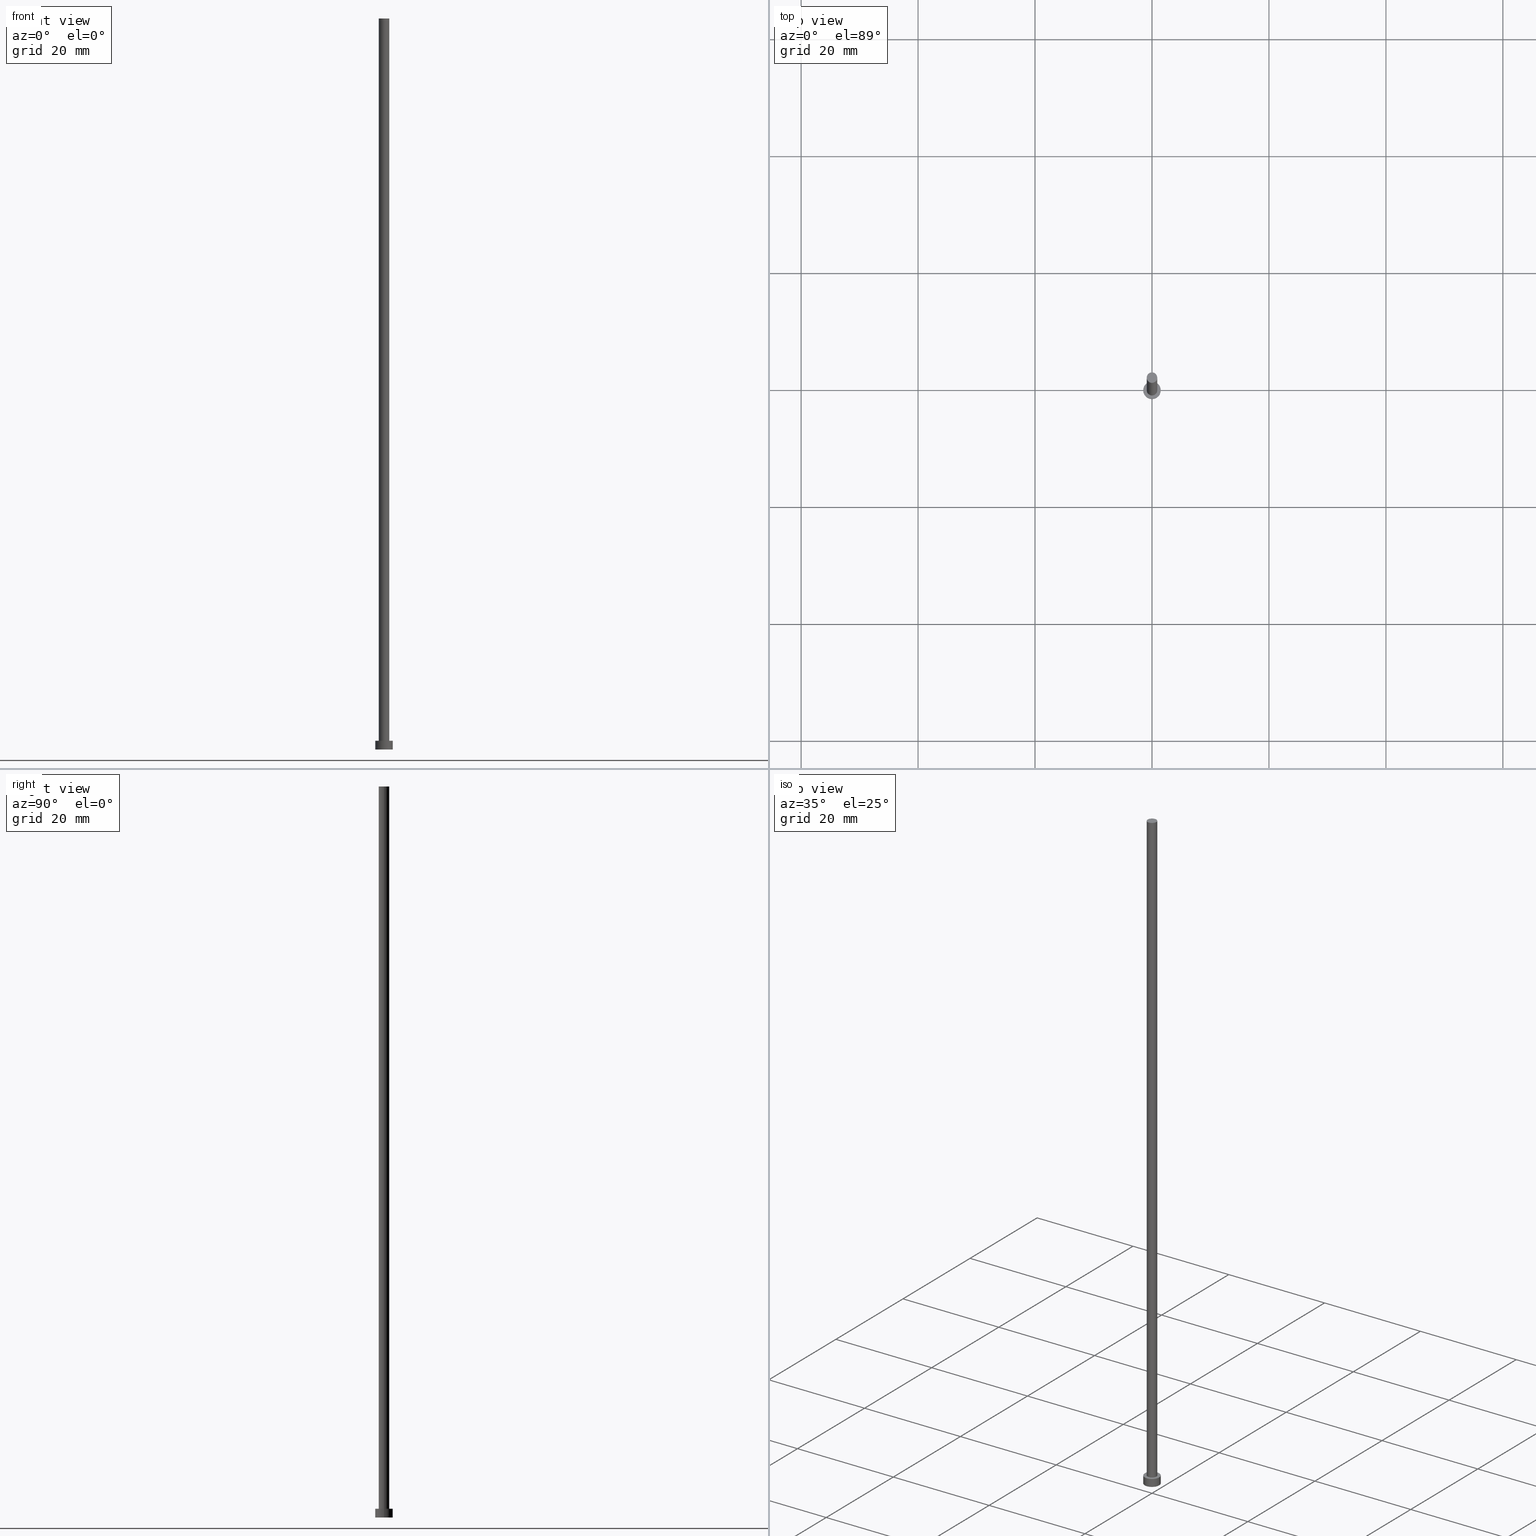
[diagram: canonical four-view strip — front | top / right | iso, engineering-drawing reading convention]
A machine part, canonical four-view strip (front | top / right | iso — engineering-drawing reading convention). The complete STEP part file that produces these views, byte-faithful:
ISO-10303-21;
HEADER;
FILE_DESCRIPTION (( 'STEP AP203' ),
    '1' );
FILE_NAME ('ebbf.STEP',
    '2023-02-13T14:57:19',
    ( '' ),
    ( '' ),
    'SwSTEP 2.0',
    'SolidWorks 2019',
    '' );
FILE_SCHEMA (( 'CONFIG_CONTROL_DESIGN' ));
ENDSEC;

DATA;
#1 = DATE_TIME_ROLE ( 'creation_date' ) ;
#2 = CIRCLE ( 'NONE', #216, 1.500000000000000222 ) ;
#3 = LINE ( 'NONE', #68, #144 ) ;
#4 = FACE_OUTER_BOUND ( 'NONE', #34, .T. ) ;
#5 = SECURITY_CLASSIFICATION ( '', '', #85 ) ;
#6 = AXIS2_PLACEMENT_3D ( 'NONE', #52, #128, #146 ) ;
#7 = CC_DESIGN_APPROVAL ( #89, ( #251 ) ) ;
#8 = DIRECTION ( 'NONE',  ( 0.000000000000000000, 0.000000000000000000, 1.000000000000000000 ) ) ;
#9 = LINE ( 'NONE', #176, #108 ) ;
#10 = ORIENTED_EDGE ( 'NONE', *, *, #233, .T. ) ;
#11 = APPROVAL ( #235, 'NEUR�EN�' ) ;
#12 = ORIENTED_EDGE ( 'NONE', *, *, #188, .T. ) ;
#13 = AXIS2_PLACEMENT_3D ( 'NONE', #150, #179, #139 ) ;
#14 = ORIENTED_EDGE ( 'NONE', *, *, #188, .F. ) ;
#15 = DIRECTION ( 'NONE',  ( 0.000000000000000000, 0.000000000000000000, 1.000000000000000000 ) ) ;
#16 = VERTEX_POINT ( 'NONE', #236 ) ;
#17 = FACE_OUTER_BOUND ( 'NONE', #234, .T. ) ;
#18 = ORIENTED_EDGE ( 'NONE', *, *, #147, .T. ) ;
#19 = PERSON_AND_ORGANIZATION ( #31, #114 ) ;
#20 = CC_DESIGN_SECURITY_CLASSIFICATION ( #5, ( #27 ) ) ;
#21 = VERTEX_POINT ( 'NONE', #88 ) ;
#22 = CALENDAR_DATE ( 2023, 13, 2 ) ;
#23 = PLANE ( 'NONE',  #50 ) ;
#24 = CALENDAR_DATE ( 2023, 13, 2 ) ;
#25 = CLOSED_SHELL ( 'NONE', ( #170, #199, #211, #54, #151, #140, #239 ) ) ;
#26 = EDGE_LOOP ( 'NONE', ( #213, #157, #253, #14 ) ) ;
#27 = PRODUCT_DEFINITION_FORMATION_WITH_SPECIFIED_SOURCE ( 'LIBOVOLN�', '', #72, .NOT_KNOWN. ) ;
#28 = APPROVAL_DATE_TIME ( #203, #205 ) ;
#29 = CC_DESIGN_DATE_AND_TIME_ASSIGNMENT ( #105, #1, ( #251 ) ) ;
#30 = DIRECTION ( 'NONE',  ( 1.000000000000000000, 0.000000000000000000, 0.000000000000000000 ) ) ;
#31 = PERSON ( 'NEUR�EN�', 'NEUR�EN�', 'NEUR�EN�', ('NEUR�EN�'), ('NEUR�EN�'), ('NEUR�EN�') ) ;
#32 = EDGE_CURVE ( 'NONE', #123, #232, #66, .T. ) ;
#33 = CYLINDRICAL_SURFACE ( 'NONE', #198, 1.500000000000000222 ) ;
#34 = EDGE_LOOP ( 'NONE', ( #96, #186, #12, #101 ) ) ;
#35 = DIRECTION ( 'NONE',  ( 1.000000000000000000, 0.000000000000000000, 0.000000000000000000 ) ) ;
#36 = PRODUCT_RELATED_PRODUCT_CATEGORY ( 'detail', '', ( #72 ) ) ;
#37 = ORIENTED_EDGE ( 'NONE', *, *, #207, .F. ) ;
#38 = COORDINATED_UNIVERSAL_TIME_OFFSET ( 1, 0, .AHEAD. ) ;
#39 = AXIS2_PLACEMENT_3D ( 'NONE', #91, #8, #167 ) ;
#40 = COORDINATED_UNIVERSAL_TIME_OFFSET ( 1, 0, .AHEAD. ) ;
#41 = AXIS2_PLACEMENT_3D ( 'NONE', #196, #116, #195 ) ;
#42 = CC_DESIGN_DATE_AND_TIME_ASSIGNMENT ( #255, #127, ( #5 ) ) ;
#43 = DATE_AND_TIME ( #126, #51 ) ;
#44 = PERSON_AND_ORGANIZATION ( #31, #114 ) ;
#45 = EDGE_CURVE ( 'NONE', #16, #123, #3, .T. ) ;
#46 = CARTESIAN_POINT ( 'NONE',  ( -0.9000000000000000222, 0.000000000000000000, 125.0000000000000000 ) ) ;
#47 = DIRECTION ( 'NONE',  ( 0.000000000000000000, 0.000000000000000000, 1.000000000000000000 ) ) ;
#48 = CARTESIAN_POINT ( 'NONE',  ( 1.500000000000000222, 1.836970198721030181E-16, 1.500000000000000000 ) ) ;
#49 = DIRECTION ( 'NONE',  ( -0.000000000000000000, -0.000000000000000000, -1.000000000000000000 ) ) ;
#50 = AXIS2_PLACEMENT_3D ( 'NONE', #238, #241, #110 ) ;
#51 = LOCAL_TIME ( 15, 57, 19.00000000000000000, #40 ) ;
#52 = CARTESIAN_POINT ( 'NONE',  ( 0.000000000000000000, 0.000000000000000000, 125.0000000000000000 ) ) ;
#53 = PERSON_AND_ORGANIZATION ( #31, #114 ) ;
#54 = ADVANCED_FACE ( 'NONE', ( #189, #160 ), #23, .T. ) ;
#55 = AXIS2_PLACEMENT_3D ( 'NONE', #64, #142, #242 ) ;
#56 = LOCAL_TIME ( 15, 57, 19.00000000000000000, #102 ) ;
#57 = FACE_OUTER_BOUND ( 'NONE', #155, .T. ) ;
#58 = ORIENTED_EDGE ( 'NONE', *, *, #112, .F. ) ;
#59 = CARTESIAN_POINT ( 'NONE',  ( 0.000000000000000000, 0.000000000000000000, 0.000000000000000000 ) ) ;
#60 = CC_DESIGN_APPROVAL ( #205, ( #5 ) ) ;
#61 = VERTEX_POINT ( 'NONE', #46 ) ;
#62 = ORIENTED_EDGE ( 'NONE', *, *, #32, .F. ) ;
#63 = APPROVAL_STATUS ( 'not_yet_approved' ) ;
#64 = CARTESIAN_POINT ( 'NONE',  ( 0.000000000000000000, 0.000000000000000000, 1.500000000000000000 ) ) ;
#65 = CC_DESIGN_PERSON_AND_ORGANIZATION_ASSIGNMENT ( #141, #184, ( #251 ) ) ;
#66 = CIRCLE ( 'NONE', #162, 0.9000000000000000222 ) ;
#67 = LOCAL_TIME ( 15, 57, 19.00000000000000000, #158 ) ;
#68 = CARTESIAN_POINT ( 'NONE',  ( 0.9000000000000000222, 1.102182119232617788E-16, 125.0000000000000000 ) ) ;
#69 = UNCERTAINTY_MEASURE_WITH_UNIT (LENGTH_MEASURE( 1.000000000000000082E-05 ), #95, 'distance_accuracy_value', 'NONE');
#70 = CARTESIAN_POINT ( 'NONE',  ( -1.500000000000000222, 0.000000000000000000, 1.500000000000000000 ) ) ;
#71 = DIRECTION ( 'NONE',  ( 1.000000000000000000, 0.000000000000000000, 0.000000000000000000 ) ) ;
#72 = PRODUCT ( 'ebbf', 'ebbf', '', ( #175 ) ) ;
#73 = CARTESIAN_POINT ( 'NONE',  ( 0.000000000000000000, 0.000000000000000000, 125.0000000000000000 ) ) ;
#74 = CARTESIAN_POINT ( 'NONE',  ( 0.9000000000000000222, 1.102182119232617788E-16, 1.500000000000000000 ) ) ;
#75 = MANIFOLD_SOLID_BREP ( 'P�idat vysunut�m3', #25 ) ;
#76 = EDGE_CURVE ( 'NONE', #232, #123, #220, .T. ) ;
#77 = CARTESIAN_POINT ( 'NONE',  ( 1.500000000000000222, 1.836970198721030181E-16, 1.500000000000000000 ) ) ;
#78 =( NAMED_UNIT ( * ) SI_UNIT ( $, .STERADIAN. ) SOLID_ANGLE_UNIT ( ) );
#79 = EDGE_LOOP ( 'NONE', ( #254, #62 ) ) ;
#80 = DIRECTION ( 'NONE',  ( 0.000000000000000000, 0.000000000000000000, 1.000000000000000000 ) ) ;
#81 = VERTEX_POINT ( 'NONE', #70 ) ;
#82 = LOCAL_TIME ( 15, 57, 19.00000000000000000, #202 ) ;
#83 = PERSON_AND_ORGANIZATION ( #31, #114 ) ;
#84 = CIRCLE ( 'NONE', #224, 1.500000000000000222 ) ;
#85 = SECURITY_CLASSIFICATION_LEVEL ( 'unclassified' ) ;
#86 = DIRECTION ( 'NONE',  ( -0.000000000000000000, -0.000000000000000000, -1.000000000000000000 ) ) ;
#87 = APPROVAL_ROLE ( '' ) ;
#88 = CARTESIAN_POINT ( 'NONE',  ( 1.500000000000000222, 1.836970198721030181E-16, 0.000000000000000000 ) ) ;
#89 = APPROVAL ( #109, 'NEUR�EN�' ) ;
#90 = CIRCLE ( 'NONE', #249, 0.9000000000000000222 ) ;
#91 = CARTESIAN_POINT ( 'NONE',  ( 0.000000000000000000, 0.000000000000000000, 0.000000000000000000 ) ) ;
#92 = CC_DESIGN_PERSON_AND_ORGANIZATION_ASSIGNMENT ( #83, #164, ( #5 ) ) ;
#93 = APPROVAL_PERSON_ORGANIZATION ( #53, #89, #87 ) ;
#94 = FACE_OUTER_BOUND ( 'NONE', #98, .T. ) ;
#95 =( LENGTH_UNIT ( ) NAMED_UNIT ( * ) SI_UNIT ( .MILLI., .METRE. ) );
#96 = ORIENTED_EDGE ( 'NONE', *, *, #45, .F. ) ;
#97 = DIRECTION ( 'NONE',  ( 0.000000000000000000, 0.000000000000000000, 1.000000000000000000 ) ) ;
#98 = EDGE_LOOP ( 'NONE', ( #37, #58 ) ) ;
#99 = ORIENTED_EDGE ( 'NONE', *, *, #233, .F. ) ;
#100 = CARTESIAN_POINT ( 'NONE',  ( 0.000000000000000000, 0.000000000000000000, 1.500000000000000000 ) ) ;
#101 = ORIENTED_EDGE ( 'NONE', *, *, #76, .T. ) ;
#102 = COORDINATED_UNIVERSAL_TIME_OFFSET ( 1, 0, .AHEAD. ) ;
#103 = CARTESIAN_POINT ( 'NONE',  ( 0.000000000000000000, 0.000000000000000000, 1.500000000000000000 ) ) ;
#104 = APPLICATION_CONTEXT ( 'configuration controlled 3d designs of mechanical parts and assemblies' ) ;
#105 = DATE_AND_TIME ( #22, #67 ) ;
#106 = EDGE_LOOP ( 'NONE', ( #18, #10 ) ) ;
#107 = CIRCLE ( 'NONE', #41, 1.500000000000000222 ) ;
#108 = VECTOR ( 'NONE', #117, 1000.000000000000000 ) ;
#109 = APPROVAL_STATUS ( 'not_yet_approved' ) ;
#110 = DIRECTION ( 'NONE',  ( 1.000000000000000000, 0.000000000000000000, -0.000000000000000000 ) ) ;
#111 = DESIGN_CONTEXT ( 'detailed design', #246, 'design' ) ;
#112 = EDGE_CURVE ( 'NONE', #21, #137, #84, .T. ) ;
#113 = CYLINDRICAL_SURFACE ( 'NONE', #215, 0.9000000000000000222 ) ;
#114 = ORGANIZATION ( 'NEUR�EN�', 'NEUR�EN�', '' ) ;
#115 = PLANE ( 'NONE',  #39 ) ;
#116 = DIRECTION ( 'NONE',  ( 0.000000000000000000, 0.000000000000000000, 1.000000000000000000 ) ) ;
#117 = DIRECTION ( 'NONE',  ( -0.000000000000000000, -0.000000000000000000, -1.000000000000000000 ) ) ;
#118 = EDGE_CURVE ( 'NONE', #193, #21, #221, .T. ) ;
#119 =( NAMED_UNIT ( * ) PLANE_ANGLE_UNIT ( ) SI_UNIT ( $, .RADIAN. ) );
#120 = ORIENTED_EDGE ( 'NONE', *, *, #147, .F. ) ;
#121 = CARTESIAN_POINT ( 'NONE',  ( -0.9000000000000000222, 0.000000000000000000, 1.500000000000000000 ) ) ;
#122 = DIRECTION ( 'NONE',  ( -0.000000000000000000, -0.000000000000000000, -1.000000000000000000 ) ) ;
#123 = VERTEX_POINT ( 'NONE', #74 ) ;
#124 = DATE_AND_TIME ( #217, #133 ) ;
#125 = PERSON_AND_ORGANIZATION ( #31, #114 ) ;
#126 = CALENDAR_DATE ( 2023, 13, 2 ) ;
#127 = DATE_TIME_ROLE ( 'classification_date' ) ;
#128 = DIRECTION ( 'NONE',  ( -0.000000000000000000, -0.000000000000000000, -1.000000000000000000 ) ) ;
#129 = EDGE_CURVE ( 'NONE', #16, #61, #90, .T. ) ;
#130 = AXIS2_PLACEMENT_3D ( 'NONE', #100, #230, #229 ) ;
#131 = CC_DESIGN_PERSON_AND_ORGANIZATION_ASSIGNMENT ( #136, #149, ( #72 ) ) ;
#132 = CARTESIAN_POINT ( 'NONE',  ( 0.000000000000000000, 0.000000000000000000, 1.500000000000000000 ) ) ;
#133 = LOCAL_TIME ( 15, 57, 19.00000000000000000, #38 ) ;
#134 = APPLICATION_PROTOCOL_DEFINITION ( 'international standard', 'config_control_design', 1994, #104 ) ;
#135 = DIRECTION ( 'NONE',  ( 1.000000000000000000, 0.000000000000000000, 0.000000000000000000 ) ) ;
#136 = PERSON_AND_ORGANIZATION ( #31, #114 ) ;
#137 = VERTEX_POINT ( 'NONE', #148 ) ;
#138 = CIRCLE ( 'NONE', #163, 0.9000000000000000222 ) ;
#139 = DIRECTION ( 'NONE',  ( 1.000000000000000000, 0.000000000000000000, -0.000000000000000000 ) ) ;
#140 = ADVANCED_FACE ( 'NONE', ( #4 ), #226, .T. ) ;
#141 = PERSON_AND_ORGANIZATION ( #31, #114 ) ;
#142 = DIRECTION ( 'NONE',  ( 0.000000000000000000, 0.000000000000000000, 1.000000000000000000 ) ) ;
#143 = PERSON_AND_ORGANIZATION_ROLE ( 'design_supplier' ) ;
#144 = VECTOR ( 'NONE', #86, 1000.000000000000000 ) ;
#145 = CARTESIAN_POINT ( 'NONE',  ( 0.000000000000000000, 0.000000000000000000, 0.000000000000000000 ) ) ;
#146 = DIRECTION ( 'NONE',  ( -1.000000000000000000, 0.000000000000000000, 0.000000000000000000 ) ) ;
#147 = EDGE_CURVE ( 'NONE', #81, #193, #156, .T. ) ;
#148 = CARTESIAN_POINT ( 'NONE',  ( -1.500000000000000222, 0.000000000000000000, 0.000000000000000000 ) ) ;
#149 = PERSON_AND_ORGANIZATION_ROLE ( 'design_owner' ) ;
#150 = CARTESIAN_POINT ( 'NONE',  ( 0.000000000000000000, 0.000000000000000000, 125.0000000000000000 ) ) ;
#151 = ADVANCED_FACE ( 'NONE', ( #94 ), #115, .F. ) ;
#152 = FACE_OUTER_BOUND ( 'NONE', #194, .T. ) ;
#153 = ORIENTED_EDGE ( 'NONE', *, *, #207, .T. ) ;
#154 = CARTESIAN_POINT ( 'NONE',  ( 0.000000000000000000, 0.000000000000000000, 0.000000000000000000 ) ) ;
#155 = EDGE_LOOP ( 'NONE', ( #214, #120, #177, #153 ) ) ;
#156 = CIRCLE ( 'NONE', #228, 1.500000000000000222 ) ;
#157 = ORIENTED_EDGE ( 'NONE', *, *, #45, .T. ) ;
#158 = COORDINATED_UNIVERSAL_TIME_OFFSET ( 1, 0, .AHEAD. ) ;
#159 = CALENDAR_DATE ( 2023, 13, 2 ) ;
#160 = FACE_OUTER_BOUND ( 'NONE', #106, .T. ) ;
#161 = CC_DESIGN_APPROVAL ( #11, ( #27 ) ) ;
#162 = AXIS2_PLACEMENT_3D ( 'NONE', #103, #182, #165 ) ;
#163 = AXIS2_PLACEMENT_3D ( 'NONE', #172, #80, #35 ) ;
#164 = PERSON_AND_ORGANIZATION_ROLE ( 'classification_officer' ) ;
#165 = DIRECTION ( 'NONE',  ( 1.000000000000000000, 0.000000000000000000, 0.000000000000000000 ) ) ;
#166 = APPROVAL_DATE_TIME ( #124, #11 ) ;
#167 = DIRECTION ( 'NONE',  ( 1.000000000000000000, 0.000000000000000000, -0.000000000000000000 ) ) ;
#168 = PRODUCT_DEFINITION_SHAPE ( 'NONE', 'NONE',  #251 ) ;
#169 = APPROVAL_PERSON_ORGANIZATION ( #125, #205, #237 ) ;
#170 = ADVANCED_FACE ( 'NONE', ( #243 ), #113, .T. ) ;
#171 = CYLINDRICAL_SURFACE ( 'NONE', #130, 1.500000000000000222 ) ;
#172 = CARTESIAN_POINT ( 'NONE',  ( 0.000000000000000000, 0.000000000000000000, 125.0000000000000000 ) ) ;
#173 =( GEOMETRIC_REPRESENTATION_CONTEXT ( 3 ) GLOBAL_UNCERTAINTY_ASSIGNED_CONTEXT ( ( #69 ) ) GLOBAL_UNIT_ASSIGNED_CONTEXT ( ( #95, #119, #78 ) ) REPRESENTATION_CONTEXT ( 'NONE', 'WORKASPACE' ) );
#174 = ORIENTED_EDGE ( 'NONE', *, *, #178, .F. ) ;
#175 = MECHANICAL_CONTEXT ( 'NONE', #104, 'mechanical' ) ;
#176 = CARTESIAN_POINT ( 'NONE',  ( -1.500000000000000222, 0.000000000000000000, 1.500000000000000000 ) ) ;
#177 = ORIENTED_EDGE ( 'NONE', *, *, #178, .T. ) ;
#178 = EDGE_CURVE ( 'NONE', #81, #137, #9, .T. ) ;
#179 = DIRECTION ( 'NONE',  ( 0.000000000000000000, 0.000000000000000000, 1.000000000000000000 ) ) ;
#180 = ORIENTED_EDGE ( 'NONE', *, *, #129, .T. ) ;
#181 = APPROVAL_ROLE ( '' ) ;
#182 = DIRECTION ( 'NONE',  ( 0.000000000000000000, 0.000000000000000000, 1.000000000000000000 ) ) ;
#183 = CC_DESIGN_PERSON_AND_ORGANIZATION_ASSIGNMENT ( #19, #143, ( #27 ) ) ;
#184 = PERSON_AND_ORGANIZATION_ROLE ( 'creator' ) ;
#185 = SHAPE_DEFINITION_REPRESENTATION ( #168, #247 ) ;
#186 = ORIENTED_EDGE ( 'NONE', *, *, #218, .F. ) ;
#187 = VECTOR ( 'NONE', #204, 1000.000000000000000 ) ;
#188 = EDGE_CURVE ( 'NONE', #61, #232, #209, .T. ) ;
#189 = FACE_BOUND ( 'NONE', #79, .T. ) ;
#190 = VECTOR ( 'NONE', #122, 1000.000000000000000 ) ;
#191 = APPROVAL_PERSON_ORGANIZATION ( #44, #11, #181 ) ;
#192 = DIRECTION ( 'NONE',  ( -1.000000000000000000, 0.000000000000000000, 0.000000000000000000 ) ) ;
#193 = VERTEX_POINT ( 'NONE', #77 ) ;
#194 = EDGE_LOOP ( 'NONE', ( #99, #201, #231, #174 ) ) ;
#195 = DIRECTION ( 'NONE',  ( 1.000000000000000000, 0.000000000000000000, 0.000000000000000000 ) ) ;
#196 = CARTESIAN_POINT ( 'NONE',  ( 0.000000000000000000, 0.000000000000000000, 1.500000000000000000 ) ) ;
#197 = ORIENTED_EDGE ( 'NONE', *, *, #218, .T. ) ;
#198 = AXIS2_PLACEMENT_3D ( 'NONE', #252, #248, #212 ) ;
#199 = ADVANCED_FACE ( 'NONE', ( #152 ), #171, .T. ) ;
#200 = APPROVAL_DATE_TIME ( #43, #89 ) ;
#201 = ORIENTED_EDGE ( 'NONE', *, *, #118, .T. ) ;
#202 = COORDINATED_UNIVERSAL_TIME_OFFSET ( 1, 0, .AHEAD. ) ;
#203 = DATE_AND_TIME ( #24, #82 ) ;
#204 = DIRECTION ( 'NONE',  ( -0.000000000000000000, -0.000000000000000000, -1.000000000000000000 ) ) ;
#205 = APPROVAL ( #63, 'NEUR�EN�' ) ;
#206 = CARTESIAN_POINT ( 'NONE',  ( 0.000000000000000000, 0.000000000000000000, 125.0000000000000000 ) ) ;
#207 = EDGE_CURVE ( 'NONE', #137, #21, #2, .T. ) ;
#208 = CARTESIAN_POINT ( 'NONE',  ( -0.9000000000000000222, 0.000000000000000000, 125.0000000000000000 ) ) ;
#209 = LINE ( 'NONE', #208, #190 ) ;
#210 = DIRECTION ( 'NONE',  ( 1.000000000000000000, 0.000000000000000000, 0.000000000000000000 ) ) ;
#211 = ADVANCED_FACE ( 'NONE', ( #57 ), #33, .T. ) ;
#212 = DIRECTION ( 'NONE',  ( -1.000000000000000000, 0.000000000000000000, 0.000000000000000000 ) ) ;
#213 = ORIENTED_EDGE ( 'NONE', *, *, #129, .F. ) ;
#214 = ORIENTED_EDGE ( 'NONE', *, *, #118, .F. ) ;
#215 = AXIS2_PLACEMENT_3D ( 'NONE', #73, #49, #192 ) ;
#216 = AXIS2_PLACEMENT_3D ( 'NONE', #154, #15, #210 ) ;
#217 = CALENDAR_DATE ( 2023, 13, 2 ) ;
#218 = EDGE_CURVE ( 'NONE', #61, #16, #138, .T. ) ;
#219 = PERSON_AND_ORGANIZATION ( #31, #114 ) ;
#220 = CIRCLE ( 'NONE', #55, 0.9000000000000000222 ) ;
#221 = LINE ( 'NONE', #48, #187 ) ;
#222 = CC_DESIGN_PERSON_AND_ORGANIZATION_ASSIGNMENT ( #219, #240, ( #27 ) ) ;
#223 = DIRECTION ( 'NONE',  ( 0.000000000000000000, 0.000000000000000000, 1.000000000000000000 ) ) ;
#224 = AXIS2_PLACEMENT_3D ( 'NONE', #145, #225, #245 ) ;
#225 = DIRECTION ( 'NONE',  ( 0.000000000000000000, 0.000000000000000000, 1.000000000000000000 ) ) ;
#226 = CYLINDRICAL_SURFACE ( 'NONE', #6, 0.9000000000000000222 ) ;
#227 = APPLICATION_PROTOCOL_DEFINITION ( 'international standard', 'config_control_design', 1994, #246 ) ;
#228 = AXIS2_PLACEMENT_3D ( 'NONE', #132, #223, #71 ) ;
#229 = DIRECTION ( 'NONE',  ( -1.000000000000000000, 0.000000000000000000, 0.000000000000000000 ) ) ;
#230 = DIRECTION ( 'NONE',  ( -0.000000000000000000, -0.000000000000000000, -1.000000000000000000 ) ) ;
#231 = ORIENTED_EDGE ( 'NONE', *, *, #112, .T. ) ;
#232 = VERTEX_POINT ( 'NONE', #121 ) ;
#233 = EDGE_CURVE ( 'NONE', #193, #81, #107, .T. ) ;
#234 = EDGE_LOOP ( 'NONE', ( #197, #180 ) ) ;
#235 = APPROVAL_STATUS ( 'not_yet_approved' ) ;
#236 = CARTESIAN_POINT ( 'NONE',  ( 0.9000000000000000222, 1.102182119232617788E-16, 125.0000000000000000 ) ) ;
#237 = APPROVAL_ROLE ( '' ) ;
#238 = CARTESIAN_POINT ( 'NONE',  ( 0.000000000000000000, 0.000000000000000000, 1.500000000000000000 ) ) ;
#239 = ADVANCED_FACE ( 'NONE', ( #17 ), #250, .T. ) ;
#240 = PERSON_AND_ORGANIZATION_ROLE ( 'creator' ) ;
#241 = DIRECTION ( 'NONE',  ( 0.000000000000000000, 0.000000000000000000, 1.000000000000000000 ) ) ;
#242 = DIRECTION ( 'NONE',  ( 1.000000000000000000, 0.000000000000000000, 0.000000000000000000 ) ) ;
#243 = FACE_OUTER_BOUND ( 'NONE', #26, .T. ) ;
#244 = AXIS2_PLACEMENT_3D ( 'NONE', #59, #97, #135 ) ;
#245 = DIRECTION ( 'NONE',  ( 1.000000000000000000, 0.000000000000000000, 0.000000000000000000 ) ) ;
#246 = APPLICATION_CONTEXT ( 'configuration controlled 3d designs of mechanical parts and assemblies' ) ;
#247 = ADVANCED_BREP_SHAPE_REPRESENTATION ( 'ebbf', ( #75, #244 ), #173 ) ;
#248 = DIRECTION ( 'NONE',  ( -0.000000000000000000, -0.000000000000000000, -1.000000000000000000 ) ) ;
#249 = AXIS2_PLACEMENT_3D ( 'NONE', #206, #47, #30 ) ;
#250 = PLANE ( 'NONE',  #13 ) ;
#251 = PRODUCT_DEFINITION ( 'NEZN�M�', '', #27, #111 ) ;
#252 = CARTESIAN_POINT ( 'NONE',  ( 0.000000000000000000, 0.000000000000000000, 1.500000000000000000 ) ) ;
#253 = ORIENTED_EDGE ( 'NONE', *, *, #32, .T. ) ;
#254 = ORIENTED_EDGE ( 'NONE', *, *, #76, .F. ) ;
#255 = DATE_AND_TIME ( #159, #56 ) ;
ENDSEC;
END-ISO-10303-21;
